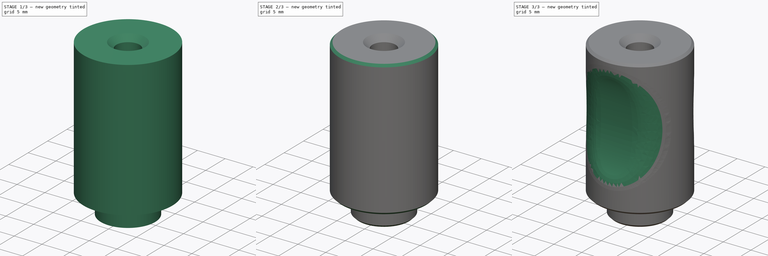
[diagram: build sequence overview — one tinted view per stage of 3, left to right]
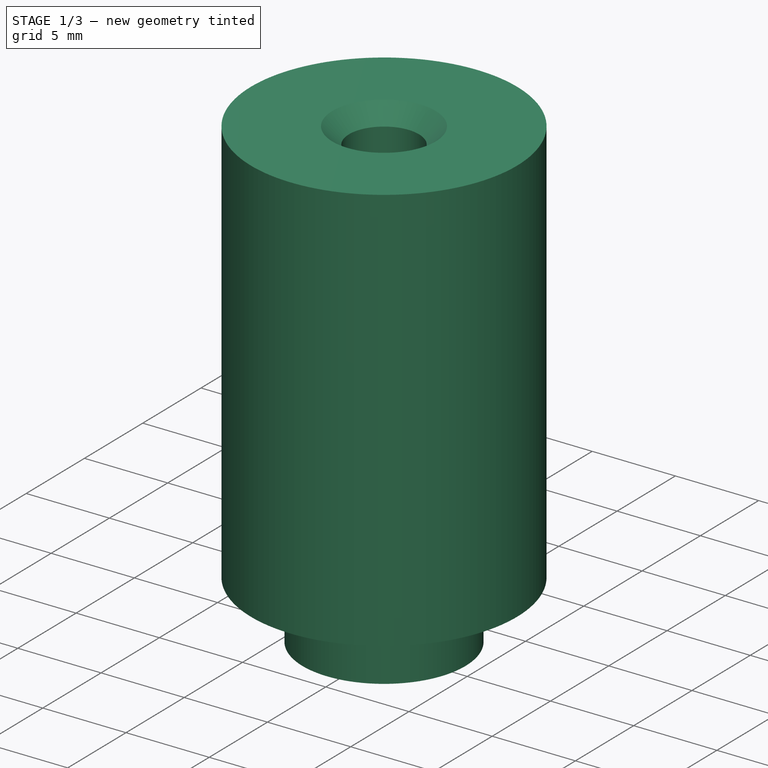
[diagram: stage 1 of 3 — iso view after this stage's code; geometry added in this stage tinted green]
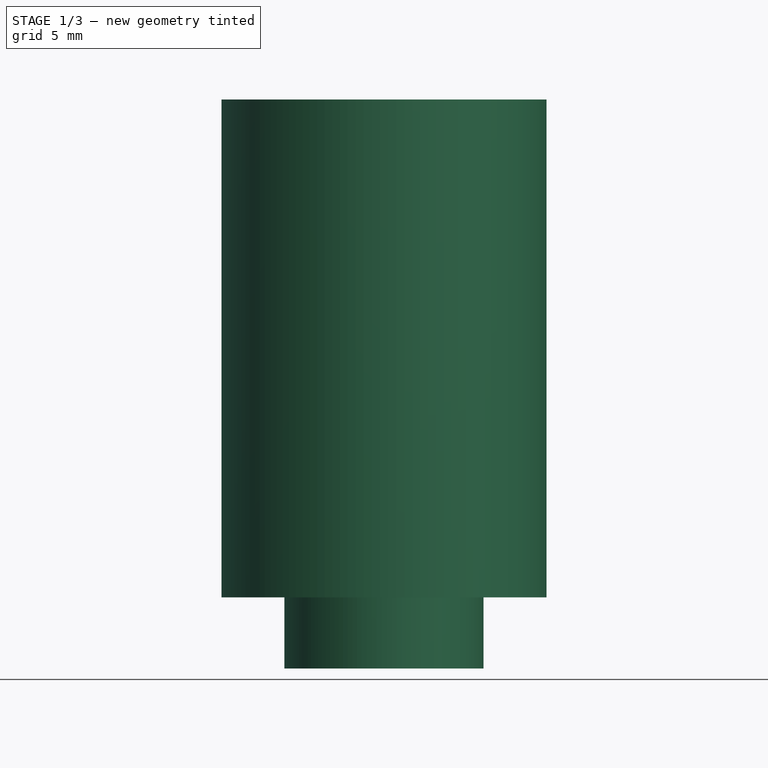
[diagram: stage 1 of 3 — front view after this stage's code; geometry added in this stage tinted green]
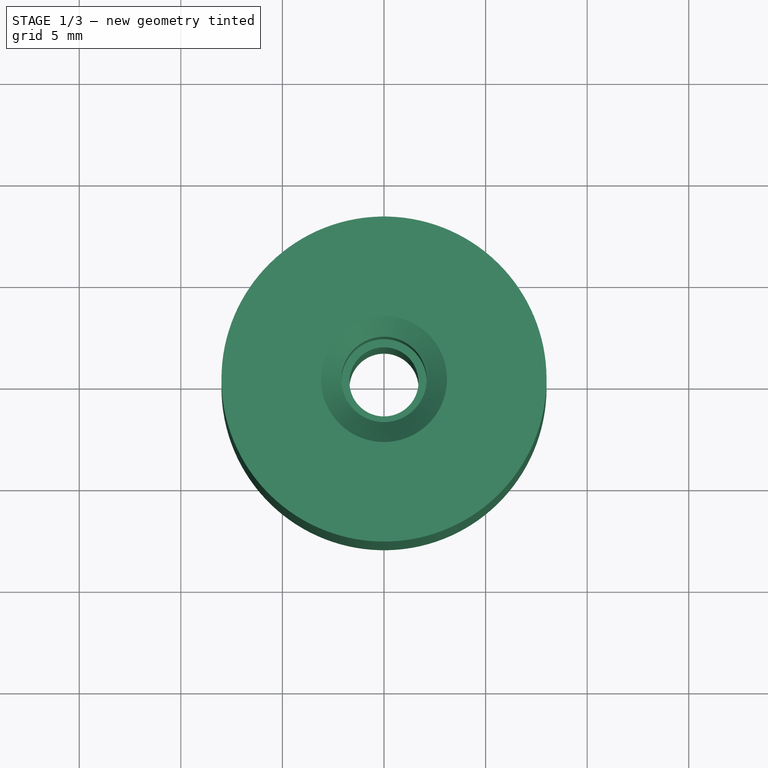
[diagram: stage 1 of 3 — top view after this stage's code; geometry added in this stage tinted green]
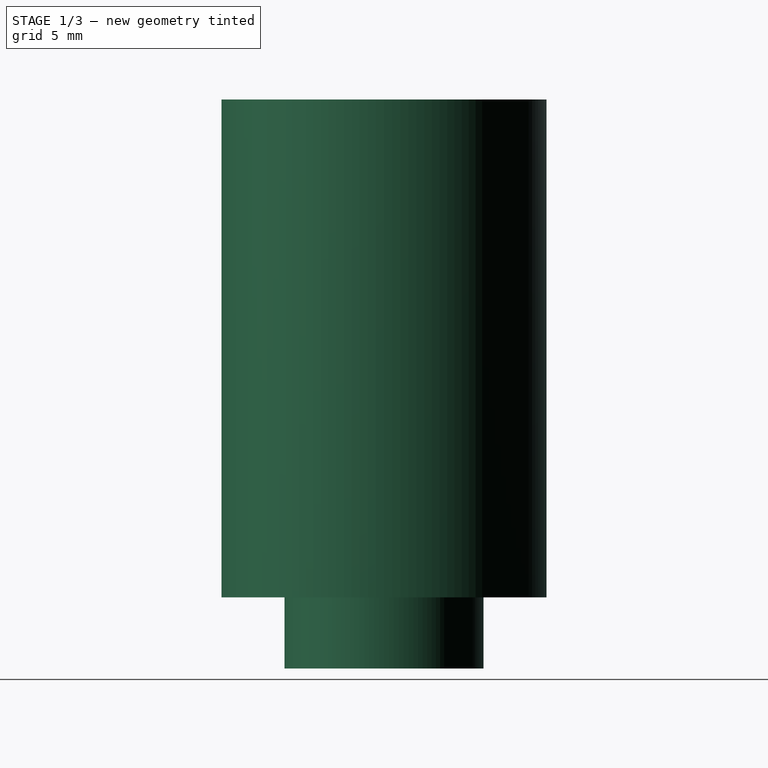
[diagram: stage 1 of 3 — right view after this stage's code; geometry added in this stage tinted green]
FCSTD DOCUMENT  (FreeCAD 2022.111R30764 (Git))
Label: tools
License: Creative Commons Attribution-NoDerivatives
LicenseURL: http://creativecommons.org/licenses/by-nd/4.0/
objects: PartDesign::Chamfer×3, Sketcher::SketchObject×2, PartDesign::Revolution×1, PartDesign::Pocket×1, PartDesign::Mirrored×1, PartDesign::Fillet×1, PartDesign::Body×1
note: 24 computed .brp shape members not serialized (recipe doc carries the construction recipe); baked Part::Feature solids carry a one-line shape summary decoded from their .brp

FEATURE [Sketcher::SketchObject] Sketch
  FullyConstrained = true
  MapMode = 5
  Placement = pos=(0,0,0) rot=(1,0,0;1.5708rad)
  Support = -> [XZ_Plane]
  TreeRank = 11
  sketch-geometry (10):
    g0: LineSegment StartX=2.1 StartY=28 StartZ=0 EndX=8 EndY=28 EndZ=0
    g1: LineSegment StartX=4.9 StartY=-1.061e-12 StartZ=0 EndX=3.25 EndY=-1.061e-12 EndZ=0
    g2: LineSegment StartX=3.25 StartY=-1.061e-12 StartZ=0 EndX=3.25 EndY=2 EndZ=0
    g3: LineSegment StartX=3.25 StartY=2 StartZ=0 EndX=1.7 EndY=2 EndZ=0
    g4: LineSegment StartX=2.1 StartY=28 StartZ=0 EndX=2.1 EndY=20 EndZ=0
    g5: LineSegment StartX=2.1 StartY=20 StartZ=0 EndX=1.7 EndY=20 EndZ=0
    g6: LineSegment StartX=1.7 StartY=20 StartZ=0 EndX=1.7 EndY=2 EndZ=0
    g7: LineSegment StartX=8 StartY=28 StartZ=0 EndX=8 EndY=3.5 EndZ=0
    g8: LineSegment StartX=8 StartY=3.5 StartZ=0 EndX=4.9 EndY=3.5 EndZ=0
    g9: LineSegment StartX=4.9 StartY=3.5 StartZ=0 EndX=4.9 EndY=-1.0609e-12 EndZ=0
  constraints (30):
    c: Horizontal(g0)
    c: PointOnObject(g1,g-1)
    c: Horizontal(g1)
    c: Coincident(g1,g2)
    c: Vertical(g2)
    c: Coincident(g2,g3)
    c: Horizontal(g3)
    c: DistanceX(g0) = 2.1
    c: DistanceY(g3,g0) = 26
    c: DistanceX(g2) = 3.25
    c: DistanceY(g2,g2) = 2
    c: Coincident(g0,g4)
    c: Vertical(g4)
    c: Coincident(g4,g5)
    c: Horizontal(g5)
    c: Coincident(g5,g6)
    c: Coincident(g6,g3)
    c: Vertical(g6)
    c: DistanceX(g3) = 1.7
    c: DistanceY(g4,g4) = 8
    c: DistanceX(g1) = 4.9
    c: Coincident(g0,g7)
    c: Vertical(g7)
    c: Coincident(g7,g8)
    c: Horizontal(g8)
    c: Coincident(g8,g9)
    c: Coincident(g9,g1)
    c: Vertical(g9)
    c: DistanceX(g0) = 8
    c: DistanceY(g9,g9) = 3.5
FEATURE [PartDesign::Revolution] Revolution
  AddSubType = 0
  Angle = 360
  Axis = (0,2e-16,1)
  Base = (0,0,0)
  ClaimChildren = false
  Fit = 0
  FitJoin = 0
  InnerFit = 0
  InnerFitJoin = 0
  Linearize = true
  NewSolid = false
  Placement = pos=(0,0,0) rot=(1,0,0;1.5708rad)
  Profile = -> Sketch
  ReferenceAxis = -> Sketch [V_Axis]
  Refine = true
  Reversed = true
  Suppress = false
  TreeRank = 12
  _ProfileBasedVersion = 1
FEATURE [PartDesign::Chamfer] Chamfer
  AddSubType = 0
  Angle = 45
  Base = -> Revolution [Edge1]
  BaseFeature = -> Revolution
  ChamferType = 0
  FlipDirection = false
  NewSolid = false
  Placement = pos=(0,0,0) rot=(1,0,0;1.5708rad)
  Refine = true
  Size = 1
  Size2 = 1
  SupportTransform = false
  Suppress = false
  TreeRank = 13
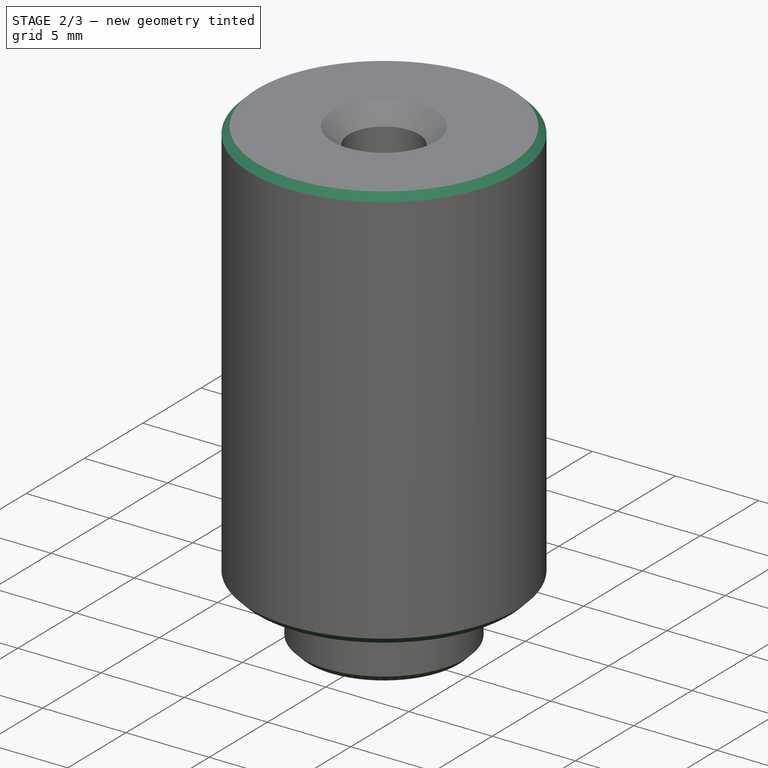
[diagram: stage 2 of 3 — iso view after this stage's code; geometry added in this stage tinted green]
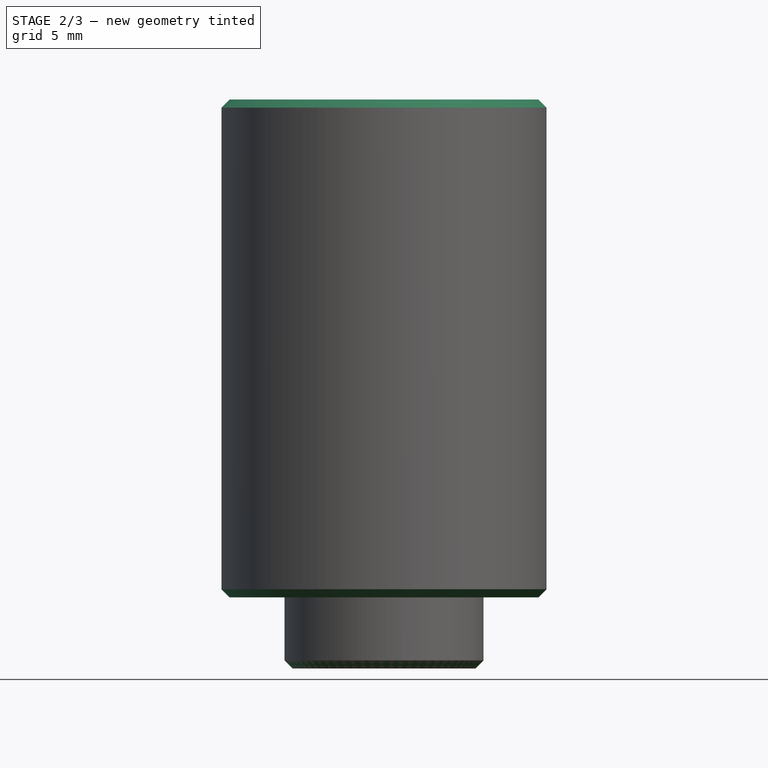
[diagram: stage 2 of 3 — front view after this stage's code; geometry added in this stage tinted green]
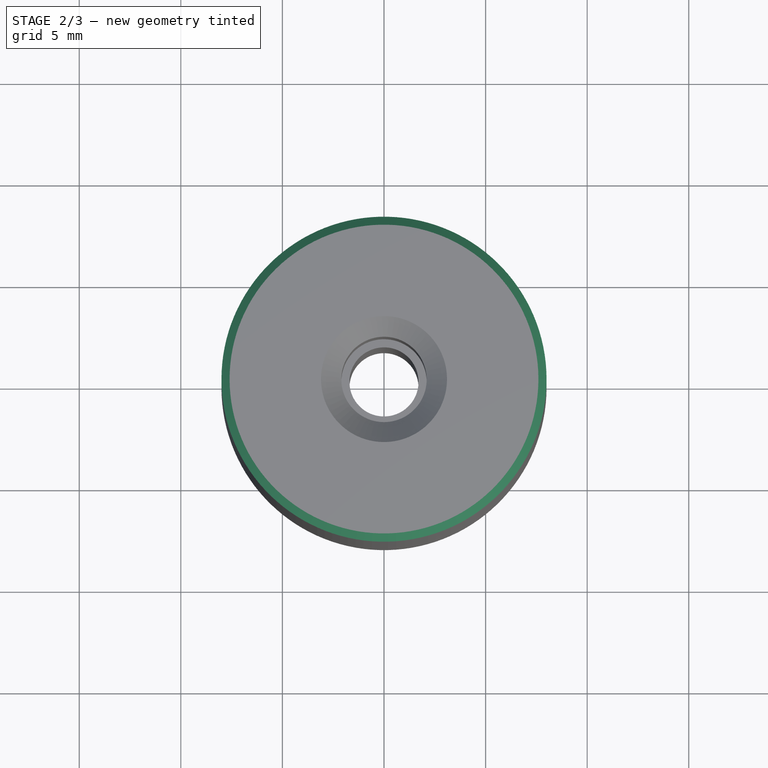
[diagram: stage 2 of 3 — top view after this stage's code; geometry added in this stage tinted green]
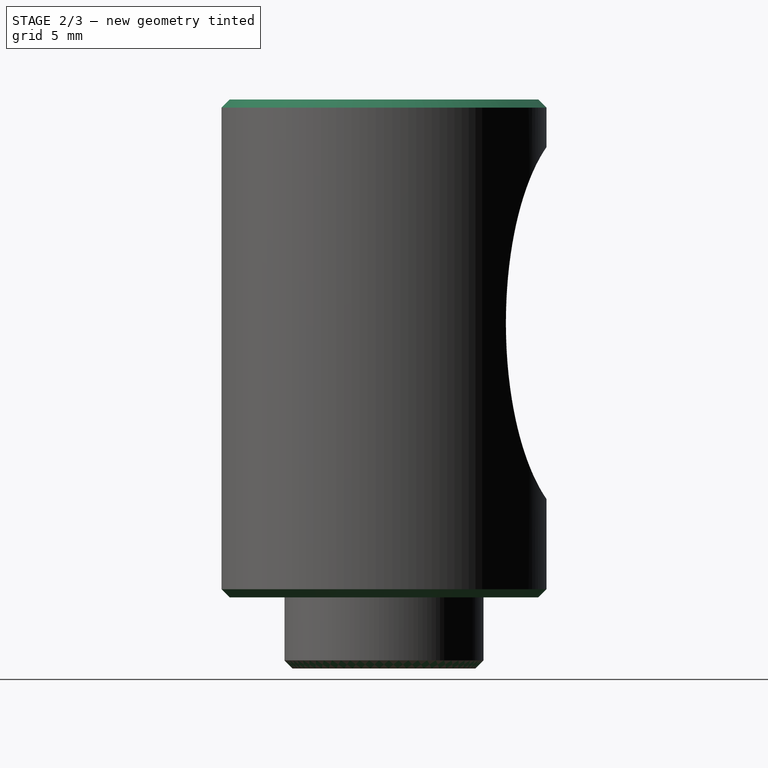
[diagram: stage 2 of 3 — right view after this stage's code; geometry added in this stage tinted green]
FEATURE [PartDesign::Chamfer] Chamfer001
  AddSubType = 0
  Angle = 45
  Base = -> Chamfer [Edge7,Edge10,Edge16,Edge14]
  BaseFeature = -> Chamfer
  ChamferType = 0
  FlipDirection = false
  NewSolid = false
  Placement = pos=(0,0,0) rot=(1,0,0;1.5708rad)
  Refine = true
  Size = 0.4
  Size2 = 1
  SupportTransform = false
  Suppress = false
  TreeRank = 14
FEATURE [PartDesign::Chamfer] Chamfer002
  AddSubType = 0
  Angle = 45
  Base = -> Chamfer001 [Edge15]
  BaseFeature = -> Chamfer001
  ChamferType = 0
  FlipDirection = false
  NewSolid = false
  Placement = pos=(0,0,0) rot=(1,0,0;1.5708rad)
  Refine = true
  Size = 1.49
  Size2 = 1
  SupportTransform = false
  Suppress = false
  TreeRank = 15
FEATURE [Sketcher::SketchObject] Sketch001
  FullyConstrained = true
  MapMode = 5
  Placement = pos=(0,0,0) rot=(0.57735,0.57735,0.57735;2.0944rad)
  Support = -> [YZ_Plane]
  TreeRank = 16
  sketch-geometry (5):
    g0: Ellipse CenterX=10 CenterY=17 CenterZ=0 NormalX=0 NormalY=0 NormalZ=1 MajorRadius=10 MinorRadius=4 AngleXU=1.5708
    g1: LineSegment [constr] StartX=10 StartY=27 StartZ=0 EndX=10 EndY=7 EndZ=0
    g2: LineSegment [constr] StartX=6 StartY=17 StartZ=0 EndX=14 EndY=17 EndZ=0
    g3: GeomPoint [constr] X=10 Y=26.1652 Z=0
    g4: GeomPoint [constr] X=10 Y=7.83485 Z=0
  constraints (6):
    c: InternalAlignment(g1-g4 -> g0) x4
    c: DistanceX(g0) = 10
    c: DistanceX(g2,g2) = 8
    c: DistanceY(g1,g1) = 20
    c: Vertical(g1)
    c: DistanceY(g0) = 17
FEATURE [PartDesign::Pocket] Pocket
  AddSubType = 1
  BaseFeature = -> Chamfer002
  CheckUpToFaceLimits = true
  ClaimChildren = false
  Fit = 0
  FitJoin = 0
  InnerFit = 0
  InnerFitJoin = 0
  InnerTaperAngle = 0
  InnerTaperAngleRev = 0
  Length = 5
  Length2 = 100
  Linearize = true
  Midplane = true
  NewSolid = false
  Placement = pos=(0,0,0) rot=(1,0,0;1.5708rad)
  Profile = -> Sketch001
  Refine = true
  Suppress = false
  TreeRank = 17
  Type = 1
  _ProfileBasedVersion = 1
  _Version = 1
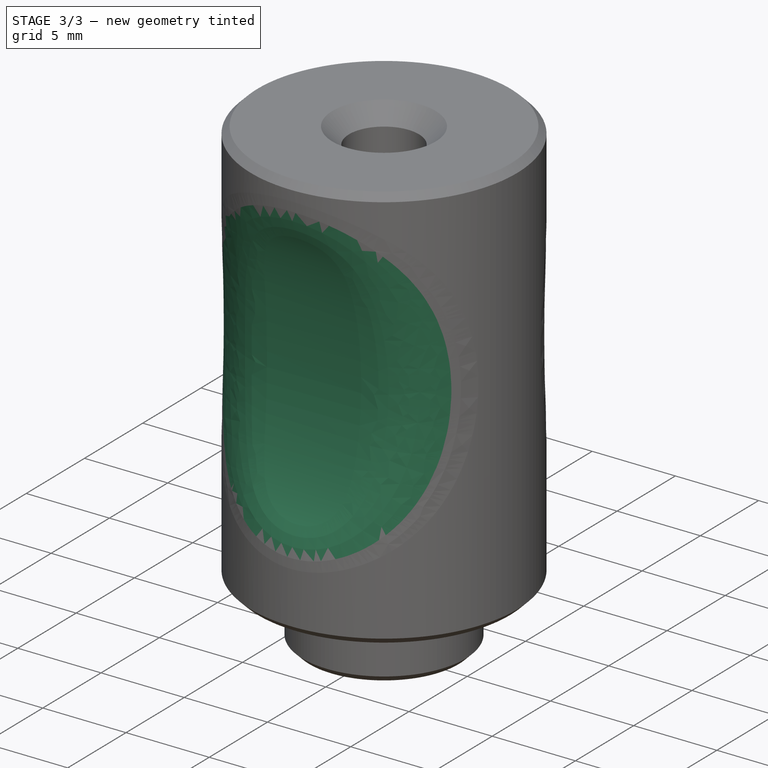
[diagram: stage 3 of 3 — iso view after this stage's code; geometry added in this stage tinted green]
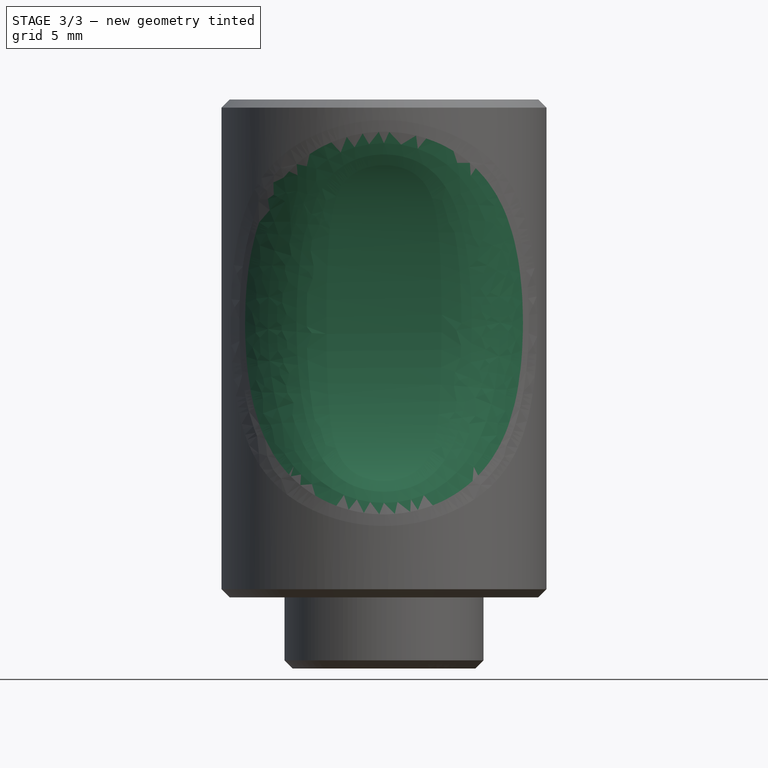
[diagram: stage 3 of 3 — front view after this stage's code; geometry added in this stage tinted green]
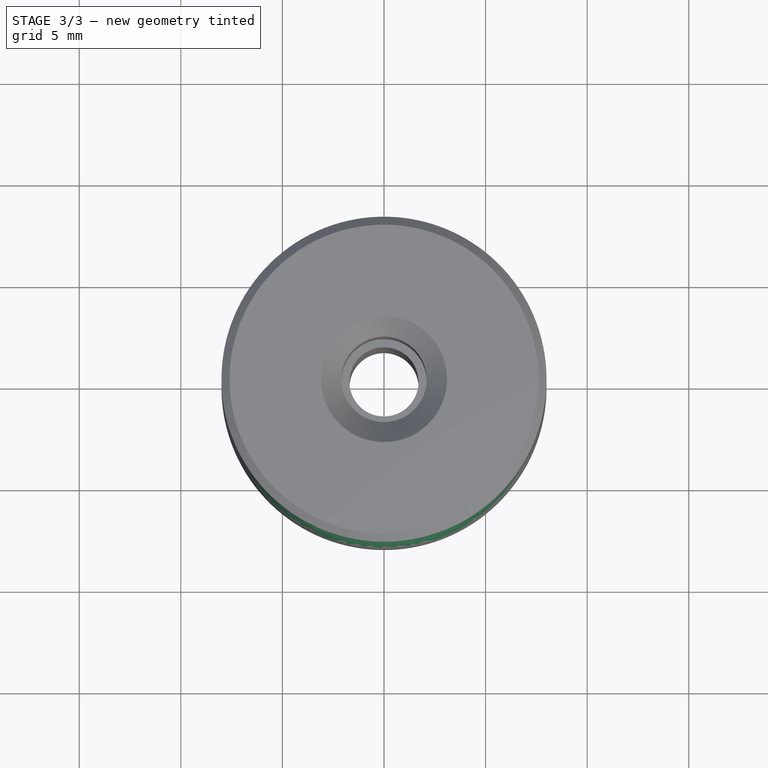
[diagram: stage 3 of 3 — top view after this stage's code; geometry added in this stage tinted green]
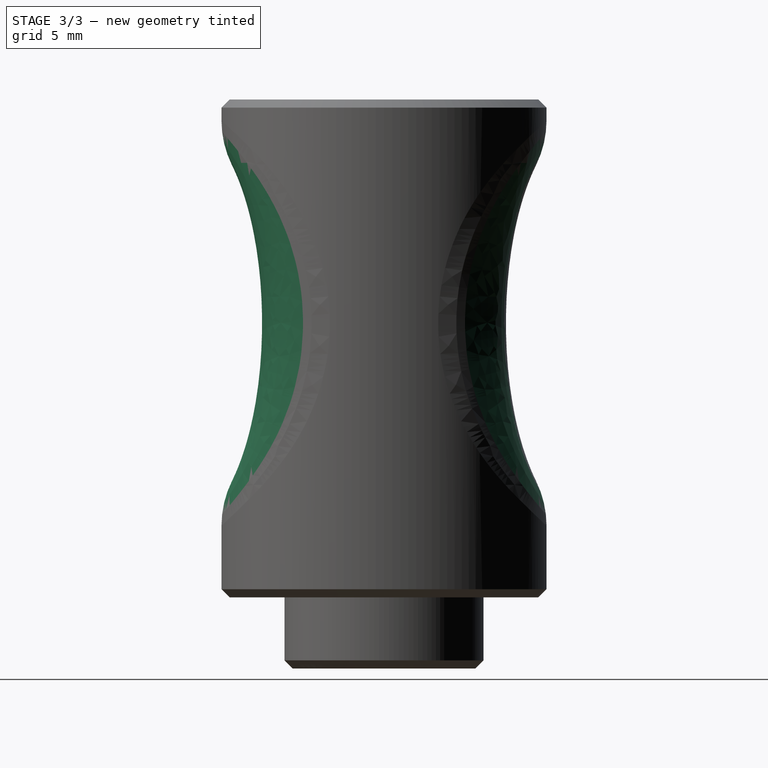
[diagram: stage 3 of 3 — right view after this stage's code; geometry added in this stage tinted green]
FEATURE [PartDesign::Mirrored] Mirrored
  AddSubType = 0
  BaseFeature = -> Pocket
  CopyShape = false
  MirrorPlane = -> Sketch001 [V_Axis]
  NewSolid = false
  OriginalSubs = -> [Pocket]
  Originals = -> [Pocket]
  ParallelTransform = true
  Placement = pos=(0,0,0) rot=(1,0,0;1.5708rad)
  Refine = true
  SubTransform = true
  Suppress = false
  TreeRank = 18
  _Version = 3
FEATURE [PartDesign::Fillet] Fillet
  AddSubType = 0
  Base = -> Mirrored [Edge25,Edge24]
  BaseFeature = -> Mirrored
  NewSolid = false
  Placement = pos=(0,0,0) rot=(1,0,0;1.5708rad)
  Radius = 5
  Refine = true
  SupportTransform = false
  Suppress = false
  TreeRank = 19
FEATURE [PartDesign::Body] Body  label="Centreur"
  AutoGroupSolids = false
  ExportMode = 0
  Group = -> [Sketch,Revolution,Chamfer,Chamfer001,Chamfer002,Sketch001,Pocket,Mirrored,Fillet]
  Origin = -> Origin
  SingleSolid = true
  Tip = -> Fillet
  TreeRank = 10
  _ExportChildren = -> [Revolution,Chamfer,Chamfer001,Chamfer002,Pocket,Mirrored,Fillet]
  _GroupVersion = 1
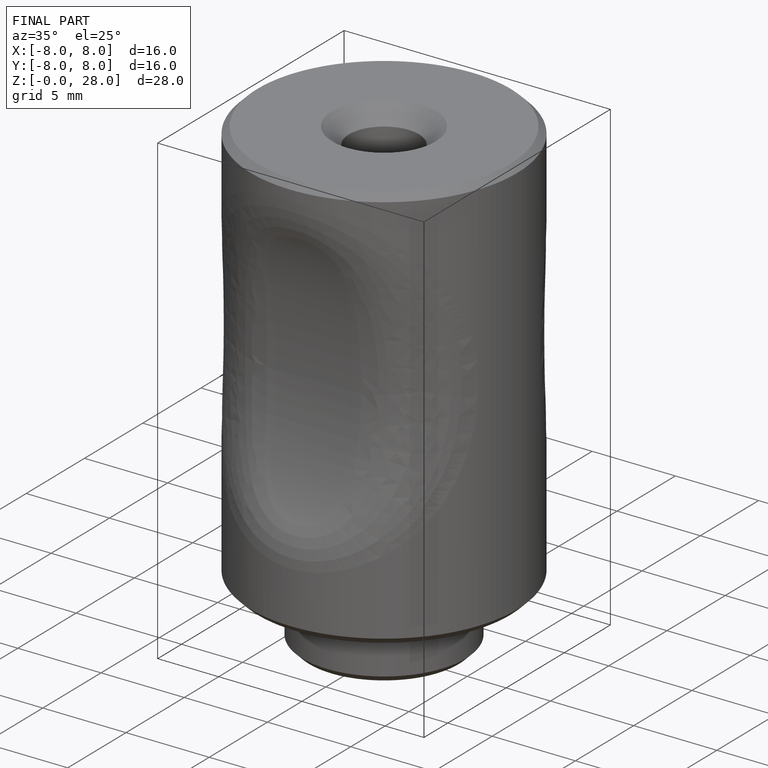
[diagram: finished part — iso view with bounding-box wireframe]
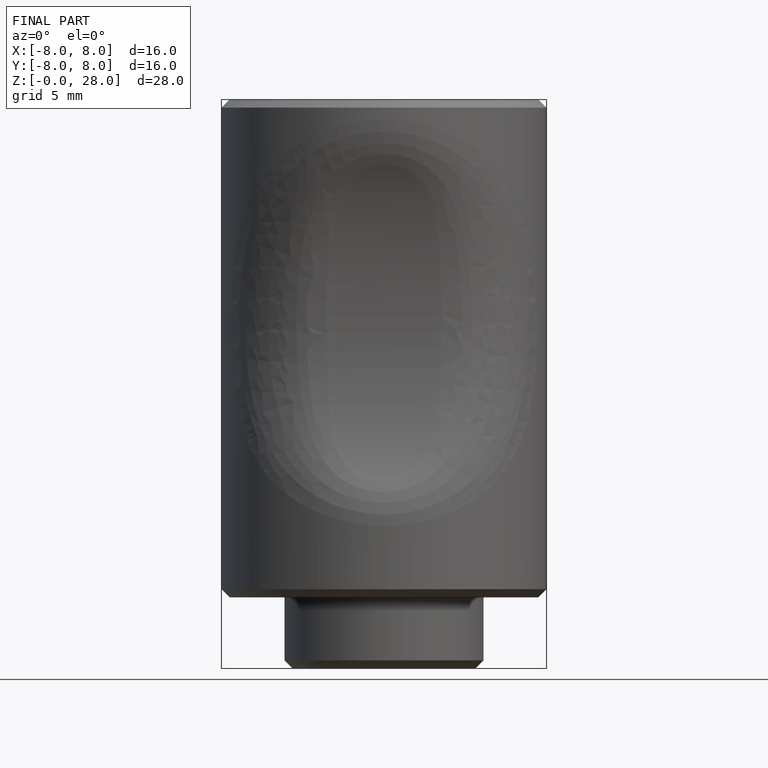
[diagram: finished part — front view with bounding-box wireframe]
